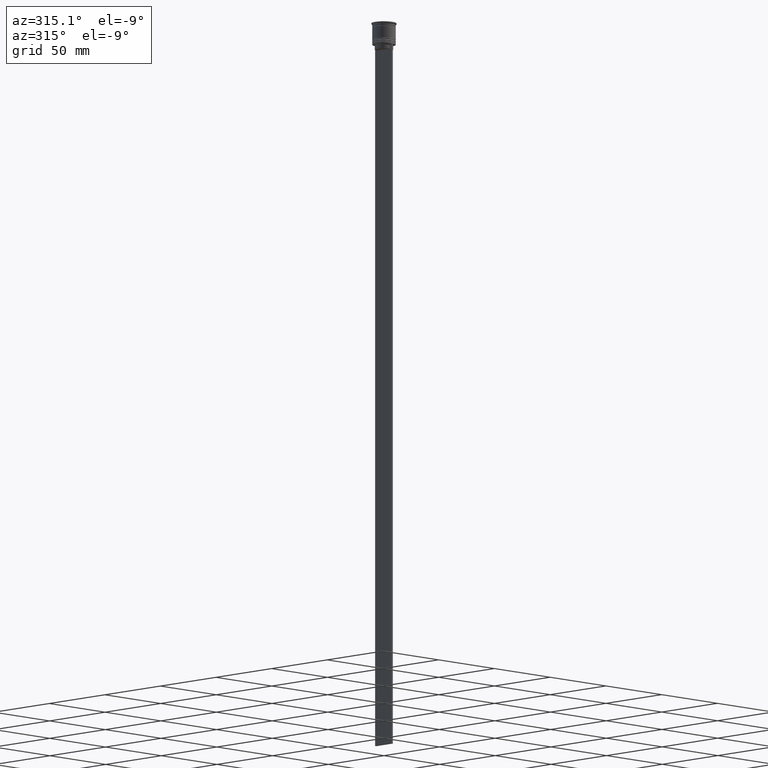
[diagram: clean part render]
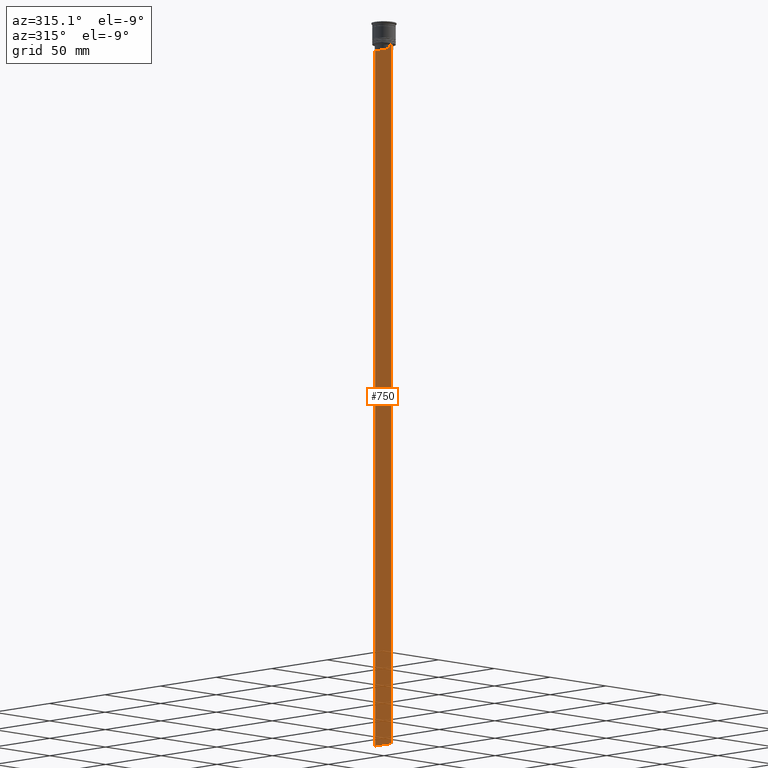
[diagram: same view with one face highlighted and labeled with its STEP entity id]
A machine part, auxiliary view. The second image highlights one B-rep face of the part: STEP entity #750.
In plain terms, the highlighted planar face has unit normal (-1, 0, 0).
Its self-contained STEP definition (entity closure, byte-faithful):
#18 = VECTOR ( 'NONE', #915, 1000.000000000000000 ) ;
#34 = B_SPLINE_CURVE_WITH_KNOTS ( 'NONE', 3,
 ( #677, #2060, #1432, #493 ),
 .UNSPECIFIED., .F., .F.,
 ( 4, 4 ),
 ( 0.01087727669788152163, 0.01158556069794289788 ),
 .UNSPECIFIED. ) ;
#81 = CARTESIAN_POINT ( 'NONE',  ( -0.5000000000000000000, -7.499999999999999112, -464.0000000000000000 ) ) ;
#121 = VERTEX_POINT ( 'NONE', #553 ) ;
#138 = LINE ( 'NONE', #2444, #148 ) ;
#148 = VECTOR ( 'NONE', #2435, 1000.000000000000000 ) ;
#153 = ORIENTED_EDGE ( 'NONE', *, *, #1721, .F. ) ;
#157 = LINE ( 'NONE', #2194, #18 ) ;
#174 = EDGE_CURVE ( 'NONE', #1700, #1292, #714, .T. ) ;
#246 = CARTESIAN_POINT ( 'NONE',  ( -0.5000000000000000000, 7.500000000000002665, -464.0000000000000000 ) ) ;
#305 = FACE_OUTER_BOUND ( 'NONE', #1733, .T. ) ;
#343 = DIRECTION ( 'NONE',  ( 0.000000000000000000, -1.000000000000000000, 0.000000000000000000 ) ) ;
#375 = VECTOR ( 'NONE', #1222, 1000.000000000000000 ) ;
#392 = VERTEX_POINT ( 'NONE', #81 ) ;
#401 = ORIENTED_EDGE ( 'NONE', *, *, #1693, .F. ) ;
#420 = CARTESIAN_POINT ( 'NONE',  ( -0.5000000000000000000, 6.380438856379706536, -14.00000000000000178 ) ) ;
#470 = VECTOR ( 'NONE', #993, 1000.000000000000000 ) ;
#474 = VECTOR ( 'NONE', #2181, 1000.000000000000000 ) ;
#493 = CARTESIAN_POINT ( 'NONE',  ( -0.5000000000000000000, 5.878775382679625849, -14.50000000000000000 ) ) ;
#494 = ORIENTED_EDGE ( 'NONE', *, *, #1396, .F. ) ;
#553 = CARTESIAN_POINT ( 'NONE',  ( -0.5000000000000000000, -5.878775382679625849, -17.00000000000000000 ) ) ;
#596 = ORIENTED_EDGE ( 'NONE', *, *, #1518, .F. ) ;
#639 = ORIENTED_EDGE ( 'NONE', *, *, #1711, .F. ) ;
#670 = CARTESIAN_POINT ( 'NONE',  ( -0.5000000000000000000, -6.380438856379706536, -14.00000000000000178 ) ) ;
#677 = CARTESIAN_POINT ( 'NONE',  ( -0.5000000000000000000, 6.380438856379706536, -14.00000000000000178 ) ) ;
#689 = LINE ( 'NONE', #1450, #474 ) ;
#714 = LINE ( 'NONE', #1480, #1120 ) ;
#717 = EDGE_CURVE ( 'NONE', #2130, #1562, #689, .T. ) ;
#750 = ADVANCED_FACE ( 'NONE', ( #305 ), #823, .T. ) ;
#783 = CARTESIAN_POINT ( 'NONE',  ( -0.5000000000000000000, -5.878775382679625849, -14.50000000000000000 ) ) ;
#790 = VERTEX_POINT ( 'NONE', #2355 ) ;
#805 = LINE ( 'NONE', #2187, #470 ) ;
#810 = DIRECTION ( 'NONE',  ( 0.000000000000000000, 0.000000000000000000, -1.000000000000000000 ) ) ;
#822 = CARTESIAN_POINT ( 'NONE',  ( -0.5000000000000000000, 7.383088784512886527, -14.00000000000000178 ) ) ;
#823 = PLANE ( 'NONE',  #2469 ) ;
#845 = CARTESIAN_POINT ( 'NONE',  ( -0.5000000000000000000, -7.499999999999999112, -464.0000000000000000 ) ) ;
#866 = ORIENTED_EDGE ( 'NONE', *, *, #1837, .F. ) ;
#891 = VECTOR ( 'NONE', #1200, 1000.000000000000000 ) ;
#915 = DIRECTION ( 'NONE',  ( 0.000000000000000000, -1.000000000000000000, 0.000000000000000000 ) ) ;
#951 = CARTESIAN_POINT ( 'NONE',  ( -0.5000000000000000000, -6.380438856379706536, -14.00000000000000178 ) ) ;
#983 = DIRECTION ( 'NONE',  ( 0.000000000000000000, -1.000000000000000000, 0.000000000000000000 ) ) ;
#993 = DIRECTION ( 'NONE',  ( -0.000000000000000000, -0.000000000000000000, 1.000000000000000000 ) ) ;
#1017 = LINE ( 'NONE', #1996, #1538 ) ;
#1060 = EDGE_CURVE ( 'NONE', #1990, #1079, #1378, .T. ) ;
#1079 = VERTEX_POINT ( 'NONE', #670 ) ;
#1120 = VECTOR ( 'NONE', #343, 1000.000000000000000 ) ;
#1200 = DIRECTION ( 'NONE',  ( 0.000000000000000000, 1.000000000000000000, 0.000000000000000000 ) ) ;
#1205 = LINE ( 'NONE', #1946, #2256 ) ;
#1208 = ORIENTED_EDGE ( 'NONE', *, *, #2443, .T. ) ;
#1217 = DIRECTION ( 'NONE',  ( -1.000000000000000000, 0.000000000000000000, 0.000000000000000000 ) ) ;
#1222 = DIRECTION ( 'NONE',  ( 0.000000000000000000, 0.000000000000000000, -1.000000000000000000 ) ) ;
#1244 = ORIENTED_EDGE ( 'NONE', *, *, #174, .F. ) ;
#1292 = VERTEX_POINT ( 'NONE', #420 ) ;
#1333 = CARTESIAN_POINT ( 'NONE',  ( -0.5000000000000000000, -6.046019991840948293, -14.33335703538585726 ) ) ;
#1378 = B_SPLINE_CURVE_WITH_KNOTS ( 'NONE', 3,
 ( #783, #1333, #2113, #951 ),
 .UNSPECIFIED., .F., .F.,
 ( 4, 4 ),
 ( 0.02765270321082434479, 0.02836198271238431559 ),
 .UNSPECIFIED. ) ;
#1396 = EDGE_CURVE ( 'NONE', #1801, #790, #157, .T. ) ;
#1397 = CARTESIAN_POINT ( 'NONE',  ( -0.5000000000000000000, -7.499999999999999112, 1.033296378372908997 ) ) ;
#1406 = ORIENTED_EDGE ( 'NONE', *, *, #1505, .F. ) ;
#1410 = LINE ( 'NONE', #2204, #375 ) ;
#1432 = CARTESIAN_POINT ( 'NONE',  ( -0.5000000000000000000, 6.046020074006152711, -14.33335695351623151 ) ) ;
#1450 = CARTESIAN_POINT ( 'NONE',  ( -0.5000000000000000000, 5.878775382679625849, 0.000000000000000000 ) ) ;
#1480 = CARTESIAN_POINT ( 'NONE',  ( -0.5000000000000000000, -7.499999999999999112, -14.00000000000000178 ) ) ;
#1505 = EDGE_CURVE ( 'NONE', #790, #392, #1410, .T. ) ;
#1518 = EDGE_CURVE ( 'NONE', #1292, #2130, #34, .T. ) ;
#1538 = VECTOR ( 'NONE', #983, 1000.000000000000000 ) ;
#1562 = VERTEX_POINT ( 'NONE', #1746 ) ;
#1596 = ORIENTED_EDGE ( 'NONE', *, *, #1791, .F. ) ;
#1636 = VERTEX_POINT ( 'NONE', #2482 ) ;
#1693 = EDGE_CURVE ( 'NONE', #1079, #1801, #1017, .T. ) ;
#1700 = VERTEX_POINT ( 'NONE', #822 ) ;
#1711 = EDGE_CURVE ( 'NONE', #121, #1990, #805, .T. ) ;
#1721 = EDGE_CURVE ( 'NONE', #1636, #1700, #1793, .T. ) ;
#1733 = EDGE_LOOP ( 'NONE', ( #596, #1244, #153, #1208, #1596, #1406, #494, #401, #1870, #639, #866, #2273 ) ) ;
#1746 = CARTESIAN_POINT ( 'NONE',  ( -0.5000000000000000000, 5.878775382679625849, -17.00000000000000000 ) ) ;
#1791 = EDGE_CURVE ( 'NONE', #392, #2044, #2177, .T. ) ;
#1793 = LINE ( 'NONE', #2368, #1857 ) ;
#1801 = VERTEX_POINT ( 'NONE', #2046 ) ;
#1837 = EDGE_CURVE ( 'NONE', #1562, #121, #138, .T. ) ;
#1857 = VECTOR ( 'NONE', #1954, 1000.000000000000000 ) ;
#1870 = ORIENTED_EDGE ( 'NONE', *, *, #1060, .F. ) ;
#1946 = CARTESIAN_POINT ( 'NONE',  ( -0.5000000000000000000, 7.500000000000002665, 1.033296378372908997 ) ) ;
#1954 = DIRECTION ( 'NONE',  ( 0.000000000000000000, -1.000000000000000000, 0.000000000000000000 ) ) ;
#1990 = VERTEX_POINT ( 'NONE', #2278 ) ;
#1996 = CARTESIAN_POINT ( 'NONE',  ( -0.5000000000000000000, -7.499999999999999112, -14.00000000000000178 ) ) ;
#2044 = VERTEX_POINT ( 'NONE', #246 ) ;
#2046 = CARTESIAN_POINT ( 'NONE',  ( -0.5000000000000000000, -7.383088784512886527, -14.00000000000000178 ) ) ;
#2060 = CARTESIAN_POINT ( 'NONE',  ( -0.5000000000000000000, 6.213239387491007015, -14.16668843563492430 ) ) ;
#2113 = CARTESIAN_POINT ( 'NONE',  ( -0.5000000000000000000, -6.213239311785844876, -14.16668851110870087 ) ) ;
#2130 = VERTEX_POINT ( 'NONE', #2199 ) ;
#2177 = LINE ( 'NONE', #845, #891 ) ;
#2178 = DIRECTION ( 'NONE',  ( 0.000000000000000000, 0.000000000000000000, 1.000000000000000000 ) ) ;
#2181 = DIRECTION ( 'NONE',  ( 0.000000000000000000, 0.000000000000000000, -1.000000000000000000 ) ) ;
#2187 = CARTESIAN_POINT ( 'NONE',  ( -0.5000000000000000000, -5.878775382679625849, 0.000000000000000000 ) ) ;
#2194 = CARTESIAN_POINT ( 'NONE',  ( -0.5000000000000000000, -7.499999999999999112, -14.00000000000000178 ) ) ;
#2199 = CARTESIAN_POINT ( 'NONE',  ( -0.5000000000000000000, 5.878775382679625849, -14.50000000000000000 ) ) ;
#2204 = CARTESIAN_POINT ( 'NONE',  ( -0.5000000000000000000, -7.499999999999999112, 1.033296378372908997 ) ) ;
#2256 = VECTOR ( 'NONE', #810, 1000.000000000000000 ) ;
#2273 = ORIENTED_EDGE ( 'NONE', *, *, #717, .F. ) ;
#2278 = CARTESIAN_POINT ( 'NONE',  ( -0.5000000000000000000, -5.878775382679625849, -14.50000000000000000 ) ) ;
#2355 = CARTESIAN_POINT ( 'NONE',  ( -0.5000000000000000000, -7.499999999999999112, -14.00000000000000178 ) ) ;
#2368 = CARTESIAN_POINT ( 'NONE',  ( -0.5000000000000000000, -7.499999999999999112, -14.00000000000000178 ) ) ;
#2435 = DIRECTION ( 'NONE',  ( 0.000000000000000000, -1.000000000000000000, 0.000000000000000000 ) ) ;
#2443 = EDGE_CURVE ( 'NONE', #1636, #2044, #1205, .T. ) ;
#2444 = CARTESIAN_POINT ( 'NONE',  ( -0.5000000000000000000, 5.899999999999998579, -17.00000000000000000 ) ) ;
#2469 = AXIS2_PLACEMENT_3D ( 'NONE', #1397, #1217, #2178 ) ;
#2482 = CARTESIAN_POINT ( 'NONE',  ( -0.5000000000000000000, 7.500000000000002665, -14.00000000000000178 ) ) ;